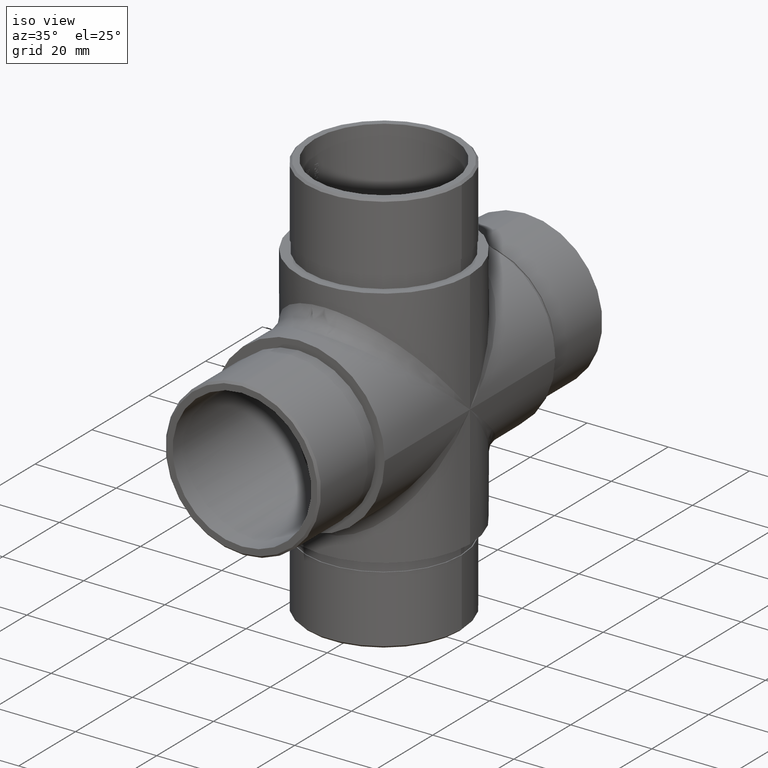
[diagram: clean part render]
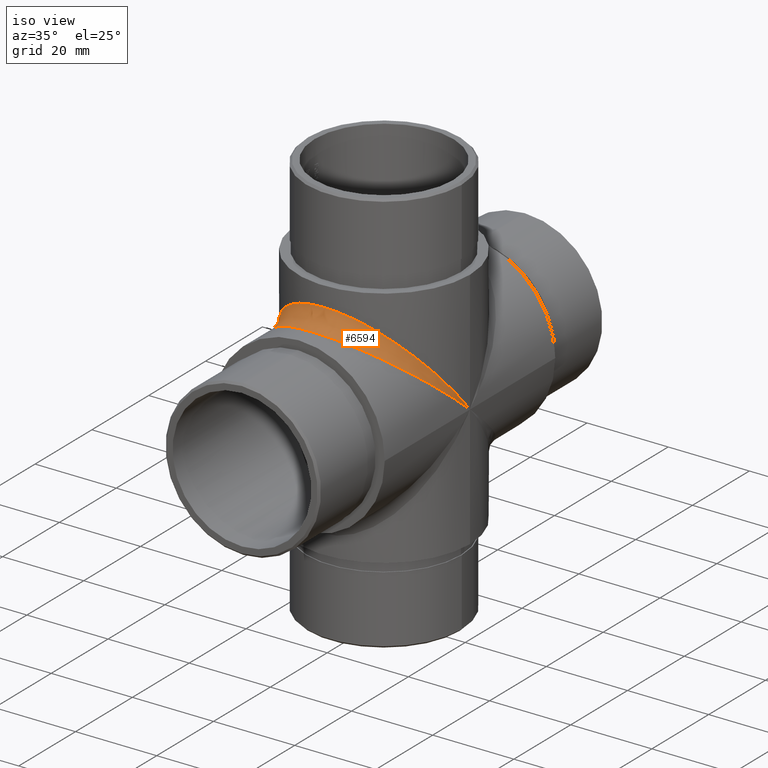
[diagram: same view with one face highlighted and labeled with its STEP entity id]
A machine part, iso view. The second image highlights one B-rep face of the part: STEP entity #6594.
In plain terms, the highlighted face is a freeform B-spline surface patch.
Its self-contained STEP definition (entity closure, byte-faithful):
#333 = CARTESIAN_POINT ( 'NONE',  ( -1.387536754971349100, -25.19999999999999600, 21.19999999999999600 ) ) ;
#380 = CARTESIAN_POINT ( 'NONE',  ( 14.00952711248328300, -18.98534765696284100, 15.97180040982632400 ) ) ;
#385 = CARTESIAN_POINT ( 'NONE',  ( -21.19999999999999900, 0.0000000000000000000, 0.0000000000000000000 ) ) ;
#457 = CARTESIAN_POINT ( 'NONE',  ( 16.11916415240514100, -13.90391388858645000, 13.90391388858645000 ) ) ;
#606 = CARTESIAN_POINT ( 'NONE',  ( -21.06334293691954000, -2.775039201274170700, 3.298631503400384400 ) ) ;
#610 = EDGE_CURVE ( 'NONE', #1507, #3645, #2059, .T. ) ;
#641 = CARTESIAN_POINT ( 'NONE',  ( -20.52195295217740100, -6.533920726212542700, 5.496790452209719300 ) ) ;
#947 =( BOUNDED_CURVE ( )  B_SPLINE_CURVE ( 3, ( #11633, #11714, #3397, #385 ),
 .UNSPECIFIED., .F., .T. ) 
 B_SPLINE_CURVE_WITH_KNOTS ( ( 4, 4 ),
 ( 1.570796326794896800, 4.712388980384689700 ),
 .UNSPECIFIED. ) 
 CURVE ( )  GEOMETRIC_REPRESENTATION_ITEM ( )  RATIONAL_B_SPLINE_CURVE ( ( 1.000000000000000000, 0.3333333333333333700, 0.3333333333333333700, 1.000000000000000000 ) ) 
 REPRESENTATION_ITEM ( '' )  );
#1279 = CARTESIAN_POINT ( 'NONE',  ( 20.39372171535857000, -6.009736595368361000, 6.009736595368361000 ) ) ;
#1326 = CARTESIAN_POINT ( 'NONE',  ( 12.93178358779992900, -16.85628166248261200, 20.03671216483891700 ) ) ;
#1371 = CARTESIAN_POINT ( 'NONE',  ( 20.11723341722873900, -8.119834590943632700, 6.830971957459491200 ) ) ;
#1406 = CARTESIAN_POINT ( 'NONE',  ( 2.775039201436070100, -21.06334293688734500, 25.03755858535097900 ) ) ;
#1442 = CARTESIAN_POINT ( 'NONE',  ( 20.11723341722873900, -6.830971957459491200, 8.119834590943632700 ) ) ;
#1492 = CARTESIAN_POINT ( 'NONE',  ( -21.03526683213854700, -3.046232280294043800, 3.046232280294043800 ) ) ;
#1507 = VERTEX_POINT ( 'NONE', #11691 ) ;
#1535 = CARTESIAN_POINT ( 'NONE',  ( -10.62439429223383900, -21.86935629520608200, 18.39802989914353000 ) ) ;
#1585 = CARTESIAN_POINT ( 'NONE',  ( -6.830971957570175900, -20.11723341718288800, 23.91293783552233500 ) ) ;
#1632 = CARTESIAN_POINT ( 'NONE',  ( -8.158931141552964000, -19.65283428329433900, 19.65283428329433900 ) ) ;
#1680 = CARTESIAN_POINT ( 'NONE',  ( -19.05525876125006600, -11.16741040025700800, 9.394805574819699200 ) ) ;
#2059 =( BOUNDED_CURVE ( )  B_SPLINE_CURVE ( 3, ( #3039, #10414, #9361, #12298 ),
 .UNSPECIFIED., .F., .T. ) 
 B_SPLINE_CURVE_WITH_KNOTS ( ( 4, 4 ),
 ( 1.570796326794896600, 4.712388980384689700 ),
 .UNSPECIFIED. ) 
 CURVE ( )  GEOMETRIC_REPRESENTATION_ITEM ( )  RATIONAL_B_SPLINE_CURVE ( ( 1.000000000000000000, 0.3333333333333333700, 0.3333333333333333700, 1.000000000000000000 ) ) 
 REPRESENTATION_ITEM ( '' )  );
#2095 = CARTESIAN_POINT ( 'NONE',  ( 21.19999999999999900, 0.0000000000000000000, 0.0000000000000000000 ) ) ;
#2305 = CARTESIAN_POINT ( 'NONE',  ( 11.77272424252729800, -17.73937341178263000, 17.73937341178263000 ) ) ;
#2348 = CARTESIAN_POINT ( 'NONE',  ( 9.380193309308133100, -19.11560716347484900, 19.11560716347484900 ) ) ;
#2390 = CARTESIAN_POINT ( 'NONE',  ( -1.387536754971349100, -21.19999999999999600, 25.19999999999999600 ) ) ;
#2431 = CARTESIAN_POINT ( 'NONE',  ( 8.158931141551665400, -19.65283428329426800, 19.65283428329426800 ) ) ;
#2478 = CARTESIAN_POINT ( 'NONE',  ( 21.06334293692004100, -3.298631503399335000, 2.775039201271633200 ) ) ;
#2514 = CARTESIAN_POINT ( 'NONE',  ( -11.77272424253031800, -17.73937341178592300, 17.73937341178912400 ) ) ;
#2552 = CARTESIAN_POINT ( 'NONE',  ( -16.85628166244771000, -12.93178358785216500, 15.37174275536941100 ) ) ;
#2657 = CARTESIAN_POINT ( 'NONE',  ( -19.90922392697493800, -7.462032808404920600, 7.462032808404920600 ) ) ;
#2702 = CARTESIAN_POINT ( 'NONE',  ( -16.85628166244771000, -15.37174275536941100, 12.93178358785216500 ) ) ;
#2934 = ORIENTED_EDGE ( 'NONE', *, *, #610, .F. ) ;
#3039 = CARTESIAN_POINT ( 'NONE',  ( -21.19999999999999900, 0.0000000000000000000, 0.0000000000000000000 ) ) ;
#3349 = CARTESIAN_POINT ( 'NONE',  ( 6.830971957571542000, -23.91293783551924400, 20.11723341718232700 ) ) ;
#3388 = CARTESIAN_POINT ( 'NONE',  ( 18.39802989917909000, -12.62899698881904700, 10.62439429218062700 ) ) ;
#3397 = CARTESIAN_POINT ( 'NONE',  ( -21.19999999999998900, -50.39999999999999900, 42.39999999999999900 ) ) ;
#3441 = CARTESIAN_POINT ( 'NONE',  ( -2.775039201434364300, -21.06334293688768300, 25.03755858535681300 ) ) ;
#3479 = CARTESIAN_POINT ( 'NONE',  ( -5.496790452049437700, -20.52195295220929300, 24.39401954696600700 ) ) ;
#3566 = CARTESIAN_POINT ( 'NONE',  ( -21.19999999999594900, -1.518439369898479700, 1.518439369898479700 ) ) ;
#3645 = VERTEX_POINT ( 'NONE', #2095 ) ;
#3708 = CARTESIAN_POINT ( 'NONE',  ( -18.66376453321240100, -10.20781610089515300, 10.20781610089515300 ) ) ;
#3760 = CARTESIAN_POINT ( 'NONE',  ( -5.738669216345221500, -20.48049129745787100, 20.48049129745787100 ) ) ;
#4198 = EDGE_CURVE ( 'NONE', #3645, #1507, #947, .T. ) ;
#4404 = CARTESIAN_POINT ( 'NONE',  ( 10.62439429223122600, -21.86935629520933200, 18.39802989914528200 ) ) ;
#4445 = CARTESIAN_POINT ( 'NONE',  ( 1.125737368065392600, -21.19999999999999600, 21.19999999999999600 ) ) ;
#4489 = CARTESIAN_POINT ( 'NONE',  ( 15.97180040982629900, -16.65283411483918000, 14.00952711248331200 ) ) ;
#4531 = CARTESIAN_POINT ( 'NONE',  ( 6.830971957571542000, -20.11723341718232700, 23.91293783551924400 ) ) ;
#4588 = CARTESIAN_POINT ( 'NONE',  ( 19.90922392696803200, -7.462032808400466300, 7.462032808400466300 ) ) ;
#4628 = CARTESIAN_POINT ( 'NONE',  ( -9.394805574709568700, -19.05525876129569000, 22.65059060304654200 ) ) ;
#4673 = CARTESIAN_POINT ( 'NONE',  ( -6.830971957570175900, -23.91293783552233500, 20.11723341718288800 ) ) ;
#4763 = CARTESIAN_POINT ( 'NONE',  ( -21.19999999999999200, -4.261770861032789000E-015, 4.261770861032789000E-015 ) ) ;
#4802 = CARTESIAN_POINT ( 'NONE',  ( -18.39802989918018000, -12.62899698881857400, 10.62439429217899400 ) ) ;
#5427 = CARTESIAN_POINT ( 'NONE',  ( 2.239409227888156600, -21.12008364583617800, 21.12008364583618200 ) ) ;
#5470 = CARTESIAN_POINT ( 'NONE',  ( 5.496790452047796400, -20.52195295220962000, 24.39401954697183300 ) ) ;
#5520 = CARTESIAN_POINT ( 'NONE',  ( -4.558171072701902000, -20.75727134403971200, 20.75727134403971200 ) ) ;
#5562 = CARTESIAN_POINT ( 'NONE',  ( -2.239409227887757800, -21.12008364584208000, 21.12008364584208000 ) ) ;
#5601 = CARTESIAN_POINT ( 'NONE',  ( 18.66376453321938900, -10.20781610089993800, 10.20781610089993800 ) ) ;
#5644 = CARTESIAN_POINT ( 'NONE',  ( -17.88959957407271200, -11.51175533382380000, 11.51175533382380000 ) ) ;
#5700 = CARTESIAN_POINT ( 'NONE',  ( -15.97180040982457100, -14.00952711248504000, 16.65283411483915500 ) ) ;
#5750 = CARTESIAN_POINT ( 'NONE',  ( -21.19999999999999200, -4.629164900776994400E-015, 3.894376821288582800E-015 ) ) ;
#5793 = CARTESIAN_POINT ( 'NONE',  ( -9.380193309304587500, -19.11560716347160800, 19.11560716346826200 ) ) ;
#5829 = CARTESIAN_POINT ( 'NONE',  ( -21.06334293691954000, -3.298631503400384400, 2.775039201274170700 ) ) ;
#6485 = CARTESIAN_POINT ( 'NONE',  ( 4.558171072701572500, -20.75727134404547400, 20.75727134404547800 ) ) ;
#6529 = CARTESIAN_POINT ( 'NONE',  ( 1.387536754971316500, -21.19999999999999600, 25.19999999999999600 ) ) ;
#6568 = CARTESIAN_POINT ( 'NONE',  ( 1.387536754971316500, -25.19999999999999600, 21.19999999999999600 ) ) ;
#6594 = ADVANCED_FACE ( 'NONE', ( #9320 ), #8147, .F. ) ;
#6607 = CARTESIAN_POINT ( 'NONE',  ( 18.39802989917909000, -10.62439429218062700, 12.62899698881904700 ) ) ;
#6650 = CARTESIAN_POINT ( 'NONE',  ( 19.05525876124980700, -9.394805574820326300, 11.16741040025690700 ) ) ;
#6883 = CARTESIAN_POINT ( 'NONE',  ( -15.10869200124227200, -14.99341395903336100, 14.99341395903336100 ) ) ;
#7517 = CARTESIAN_POINT ( 'NONE',  ( 5.496790452047796400, -24.39401954697183300, 20.52195295220962000 ) ) ;
#7553 = CARTESIAN_POINT ( 'NONE',  ( -1.125737368065418800, -21.19999999999999600, 21.19999999999999600 ) ) ;
#7588 = CARTESIAN_POINT ( 'NONE',  ( 10.62439429223122600, -18.39802989914527800, 21.86935629520933200 ) ) ;
#7636 = CARTESIAN_POINT ( 'NONE',  ( 12.93178358779992900, -20.03671216483891700, 16.85628166248261200 ) ) ;
#7680 = CARTESIAN_POINT ( 'NONE',  ( -12.93178358779725900, -20.03671216484221400, 16.85628166248439900 ) ) ;
#7731 = CARTESIAN_POINT ( 'NONE',  ( -20.11723341722846200, -6.830971957460161700, 8.119834590943579400 ) ) ;
#7876 = CARTESIAN_POINT ( 'NONE',  ( -12.93969731450659700, -16.91546427951500000, 16.91546427951500000 ) ) ;
#8147 =( BOUNDED_SURFACE ( )  B_SPLINE_SURFACE ( 3, 2, ( 
 ( #11626, #10748, #8603 ),
 ( #11746, #12670, #8651 ),
 ( #2478, #8558, #12717 ),
 ( #10627, #1279, #9540 ),
 ( #1371, #4588, #1442 ),
 ( #11711, #5601, #6650 ),
 ( #3388, #9712, #6607 ),
 ( #12762, #457, #12605 ),
 ( #4489, #8685, #10711 ),
 ( #380, #8512, #9669 ),
 ( #7636, #2305, #1326 ),
 ( #4404, #2348, #7588 ),
 ( #9595, #2431, #11673 ),
 ( #3349, #10587, #4531 ),
 ( #7517, #6485, #5470 ),
 ( #11582, #5427, #1406 ),
 ( #6568, #4445, #6529 ),
 ( #333, #7553, #2390 ),
 ( #9630, #5562, #3441 ),
 ( #10665, #5520, #3479 ),
 ( #4673, #3760, #1585 ),
 ( #11790, #1632, #4628 ),
 ( #1535, #5793, #11832 ),
 ( #7680, #2514, #12982 ),
 ( #10958, #7876, #10880 ),
 ( #9950, #6883, #5700 ),
 ( #2702, #12943, #2552 ),
 ( #4802, #5644, #9908 ),
 ( #1680, #3708, #8726 ),
 ( #11965, #2657, #7731 ),
 ( #641, #10921, #12803 ),
 ( #5829, #1492, #606 ),
 ( #9766, #3566, #8826 ),
 ( #5750, #4763, #10790 ) ),
 .UNSPECIFIED., .F., .F., .T. ) 
 B_SPLINE_SURFACE_WITH_KNOTS ( ( 4, 2, 2, 2, 2, 2, 2, 2, 2, 2, 2, 2, 2, 2, 2, 2, 4 ),
 ( 3, 3 ),
 ( 1.570796326794896600, 1.767145867644258600, 1.963495408493620700, 2.159844949342982500, 2.356194490192344800, 2.552544031041707100, 2.748893571891069000, 2.945243112740430800, 3.141592653589793100, 3.337942194439155400, 3.534291735288517300, 3.730641276137879100, 3.926990816987241400, 4.123340357836603700, 4.319689898685965100, 4.516039439535327400, 4.712388980384689700 ),
 ( 0.0000000000000000000, 1.000000000000000000 ),
 .UNSPECIFIED. ) 
 GEOMETRIC_REPRESENTATION_ITEM ( )  RATIONAL_B_SPLINE_SURFACE ( (
 ( 1.000000000000000000, 1.000000000000000000, 1.000000000000000000),
 ( 1.000000000000000000, 1.000009746408525400, 1.000000000000000000),
 ( 1.000000000000000000, 0.9967613244636435200, 1.000000000000000000),
 ( 1.000000000000000000, 0.9841171504840973100, 1.000000000000000000),
 ( 1.000000000000000000, 0.9747108043703879300, 1.000000000000000000),
 ( 1.000000000000000000, 0.9506740353919248500, 1.000000000000000000),
 ( 1.000000000000000000, 0.9360421842821699000, 1.000000000000000000),
 ( 1.000000000000000000, 0.9031650994042259600, 1.000000000000000000),
 ( 1.000000000000000000, 0.8849191471496548100, 1.000000000000000000),
 ( 1.000000000000000000, 0.8471316604192219400, 1.000000000000000000),
 ( 1.000000000000000000, 0.8275942696179725600, 1.000000000000000000),
 ( 1.000000000000000000, 0.7902180086253696200, 1.000000000000000000),
 ( 1.000000000000000000, 0.7723968218425847400, 1.000000000000000000),
 ( 1.000000000000000000, 0.7418334178546199800, 1.000000000000000000),
 ( 1.000000000000000000, 0.7291288940373567000, 1.000000000000000000),
 ( 1.000000000000000000, 0.7117460025059613200, 1.000000000000000000),
 ( 1.000000000000000000, 0.7071067811865475700, 1.000000000000000000),
 ( 1.000000000000000000, 0.7071067811865475700, 1.000000000000000000),
 ( 1.000000000000000000, 0.7117460025059605400, 1.000000000000000000),
 ( 1.000000000000000000, 0.7291288940373559200, 1.000000000000000000),
 ( 1.000000000000000000, 0.7418334178545212800, 1.000000000000000000),
 ( 1.000000000000000000, 0.7723968218426821000, 1.000000000000000000),
 ( 1.000000000000000000, 0.7902180086252642600, 1.000000000000000000),
 ( 1.000000000000000000, 0.8275942696180766900, 1.000000000000000000),
 ( 1.000000000000000000, 0.8471316604192223900, 1.000000000000000000),
 ( 1.000000000000000000, 0.8849191471496552500, 1.000000000000000000),
 ( 1.000000000000000000, 0.9031650994043459700, 1.000000000000000000),
 ( 1.000000000000000000, 0.9360421842820495500, 1.000000000000000000),
 ( 1.000000000000000000, 0.9506740353920163400, 1.000000000000000000),
 ( 1.000000000000000000, 0.9747108043702963400, 1.000000000000000000),
 ( 1.000000000000000000, 0.9841171504839688600, 1.000000000000000000),
 ( 1.000000000000000000, 0.9967613244637715300, 1.000000000000000000),
 ( 1.000000000000000000, 1.000009746408429200, 1.000000000000000000),
 ( 1.000000000000000000, 1.000000000000000000, 1.000000000000000000) ) ) 
 REPRESENTATION_ITEM ( '' )  SURFACE ( )  );
#8512 = CARTESIAN_POINT ( 'NONE',  ( 12.93969731450656900, -16.91546427951859900, 16.91546427951859900 ) ) ;
#8558 = CARTESIAN_POINT ( 'NONE',  ( 21.03526683215851300, -3.046232280294806700, 3.046232280294806700 ) ) ;
#8603 = CARTESIAN_POINT ( 'NONE',  ( 21.19999999999999200, 1.298125607096194200E-015, -1.543054966925664900E-015 ) ) ;
#8651 = CARTESIAN_POINT ( 'NONE',  ( 21.19999999999999200, -1.387552495134386500, 1.649354852706912200 ) ) ;
#8685 = CARTESIAN_POINT ( 'NONE',  ( 15.10869200124224500, -14.99341395902995600, 14.99341395902995600 ) ) ;
#8726 = CARTESIAN_POINT ( 'NONE',  ( -19.05525876125006600, -9.394805574819699200, 11.16741040025700800 ) ) ;
#8826 = CARTESIAN_POINT ( 'NONE',  ( -21.19999999999999200, -1.387552495133284500, 1.649354852705602300 ) ) ;
#9320 = FACE_OUTER_BOUND ( 'NONE', #12465, .T. ) ;
#9361 = CARTESIAN_POINT ( 'NONE',  ( 21.19999999999998900, -42.39999999999999900, 50.39999999999999900 ) ) ;
#9540 = CARTESIAN_POINT ( 'NONE',  ( 20.52195295217691800, -5.496790452212173300, 6.533920726213493100 ) ) ;
#9595 = CARTESIAN_POINT ( 'NONE',  ( 9.394805574708316300, -22.65059060304957600, 19.05525876129620100 ) ) ;
#9630 = CARTESIAN_POINT ( 'NONE',  ( -2.775039201434363900, -25.03755858535681300, 21.06334293688768300 ) ) ;
#9669 = CARTESIAN_POINT ( 'NONE',  ( 14.00952711248328300, -15.97180040982632400, 18.98534765696284100 ) ) ;
#9712 = CARTESIAN_POINT ( 'NONE',  ( 17.88959957407065100, -11.51175533382327600, 11.51175533382327600 ) ) ;
#9766 = CARTESIAN_POINT ( 'NONE',  ( -21.19999999999999200, -1.649354852705602300, 1.387552495133284500 ) ) ;
#9908 = CARTESIAN_POINT ( 'NONE',  ( -18.39802989918018000, -10.62439429217899400, 12.62899698881857400 ) ) ;
#9950 = CARTESIAN_POINT ( 'NONE',  ( -15.97180040982457100, -16.65283411483915500, 14.00952711248504000 ) ) ;
#10414 = CARTESIAN_POINT ( 'NONE',  ( -21.19999999999999900, -42.39999999999999100, 50.39999999999999900 ) ) ;
#10587 = CARTESIAN_POINT ( 'NONE',  ( 5.738669216347003200, -20.48049129745779600, 20.48049129745779600 ) ) ;
#10627 = CARTESIAN_POINT ( 'NONE',  ( 20.52195295217691800, -6.533920726213493100, 5.496790452212173300 ) ) ;
#10665 = CARTESIAN_POINT ( 'NONE',  ( -5.496790452049437700, -24.39401954696600700, 20.52195295220929300 ) ) ;
#10711 = CARTESIAN_POINT ( 'NONE',  ( 15.97180040982629900, -14.00952711248331200, 16.65283411483918000 ) ) ;
#10748 = CARTESIAN_POINT ( 'NONE',  ( 21.19999999999999200, 1.420590287010929300E-015, -1.420590287010929300E-015 ) ) ;
#10790 = CARTESIAN_POINT ( 'NONE',  ( -21.19999999999999200, -3.894376821288582800E-015, 4.629164900776994400E-015 ) ) ;
#10880 = CARTESIAN_POINT ( 'NONE',  ( -14.00952711248506200, -15.97180040982455100, 18.98534765696281200 ) ) ;
#10921 = CARTESIAN_POINT ( 'NONE',  ( -20.39372171537867800, -6.009736595369608900, 6.009736595369608900 ) ) ;
#10958 = CARTESIAN_POINT ( 'NONE',  ( -14.00952711248506200, -18.98534765696281200, 15.97180040982455100 ) ) ;
#11550 = ORIENTED_EDGE ( 'NONE', *, *, #4198, .F. ) ;
#11582 = CARTESIAN_POINT ( 'NONE',  ( 2.775039201436070100, -25.03755858535097900, 21.06334293688734500 ) ) ;
#11626 = CARTESIAN_POINT ( 'NONE',  ( 21.19999999999999200, 1.543054966925664900E-015, -1.298125607096194200E-015 ) ) ;
#11633 = CARTESIAN_POINT ( 'NONE',  ( 21.19999999999999900, 0.0000000000000000000, 0.0000000000000000000 ) ) ;
#11673 = CARTESIAN_POINT ( 'NONE',  ( 9.394805574708316300, -19.05525876129620100, 22.65059060304957600 ) ) ;
#11691 = CARTESIAN_POINT ( 'NONE',  ( -21.19999999999999900, 0.0000000000000000000, 0.0000000000000000000 ) ) ;
#11711 = CARTESIAN_POINT ( 'NONE',  ( 19.05525876124980700, -11.16741040025690700, 9.394805574820326300 ) ) ;
#11714 = CARTESIAN_POINT ( 'NONE',  ( 21.19999999999998900, -50.39999999999999900, 42.39999999999999100 ) ) ;
#11746 = CARTESIAN_POINT ( 'NONE',  ( 21.19999999999999200, -1.649354852706912200, 1.387552495134386500 ) ) ;
#11790 = CARTESIAN_POINT ( 'NONE',  ( -9.394805574709568700, -22.65059060304654200, 19.05525876129569000 ) ) ;
#11832 = CARTESIAN_POINT ( 'NONE',  ( -10.62439429223383900, -18.39802989914353000, 21.86935629520608200 ) ) ;
#11965 = CARTESIAN_POINT ( 'NONE',  ( -20.11723341722846200, -8.119834590943579400, 6.830971957460161700 ) ) ;
#12298 = CARTESIAN_POINT ( 'NONE',  ( 21.19999999999999900, 0.0000000000000000000, 0.0000000000000000000 ) ) ;
#12465 = EDGE_LOOP ( 'NONE', ( #2934, #11550 ) ) ;
#12605 = CARTESIAN_POINT ( 'NONE',  ( 16.85628166244883600, -12.93178358785048100, 15.37174275536887600 ) ) ;
#12670 = CARTESIAN_POINT ( 'NONE',  ( 21.19999999999594600, -1.518439369897528900, 1.518439369897528900 ) ) ;
#12717 = CARTESIAN_POINT ( 'NONE',  ( 21.06334293692004100, -2.775039201271633200, 3.298631503399335000 ) ) ;
#12762 = CARTESIAN_POINT ( 'NONE',  ( 16.85628166244883600, -15.37174275536887600, 12.93178358785048100 ) ) ;
#12803 = CARTESIAN_POINT ( 'NONE',  ( -20.52195295217740100, -5.496790452209719300, 6.533920726212542700 ) ) ;
#12943 = CARTESIAN_POINT ( 'NONE',  ( -16.11916415240320100, -13.90391388858564200, 13.90391388858564200 ) ) ;
#12982 = CARTESIAN_POINT ( 'NONE',  ( -12.93178358779725900, -16.85628166248439900, 20.03671216484221400 ) ) ;